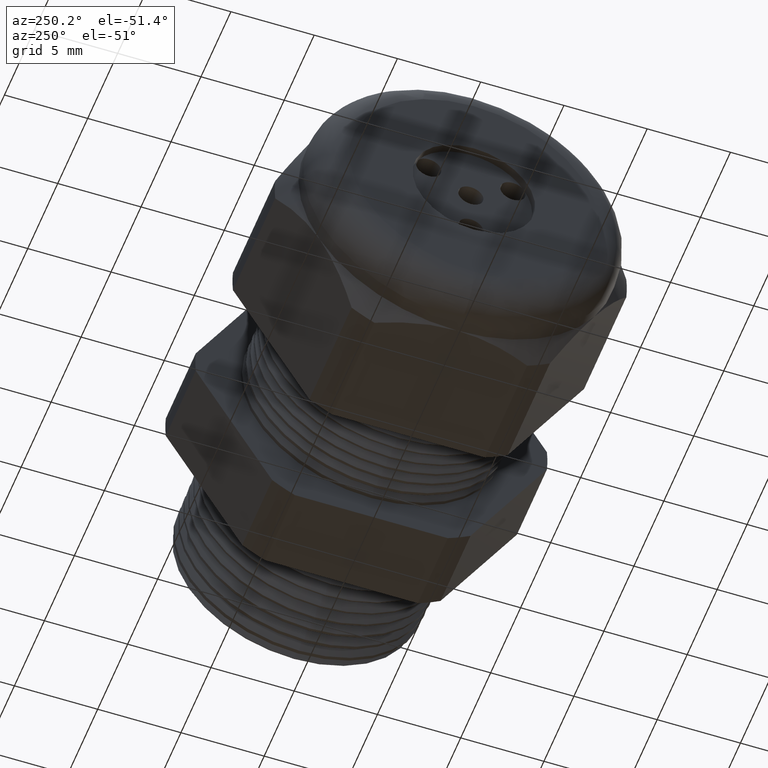
[diagram: clean part render]
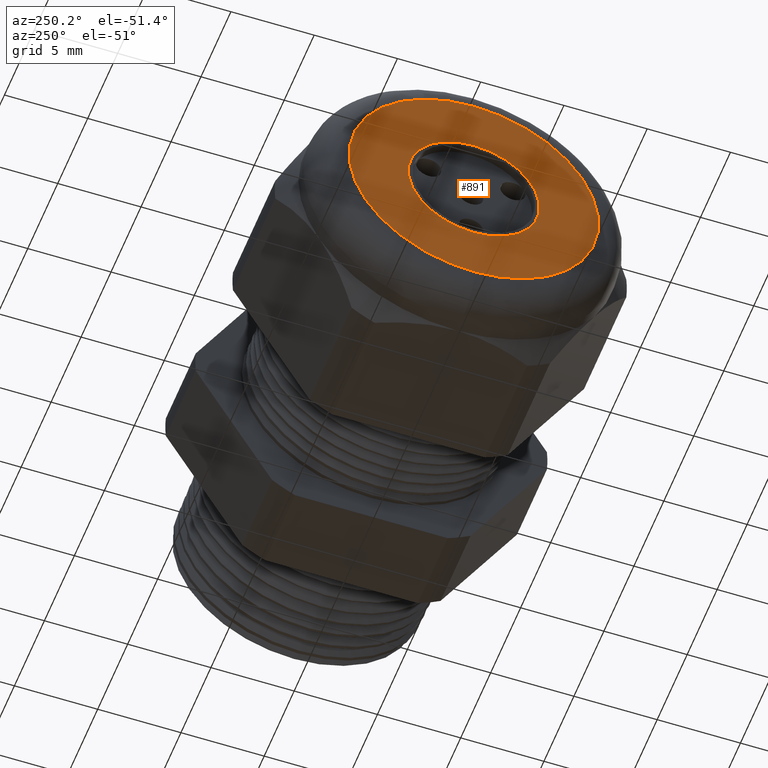
[diagram: same view with one face highlighted and labeled with its STEP entity id]
A machine part, auxiliary view. The second image highlights one B-rep face of the part: STEP entity #891.
In plain terms, the highlighted planar face has unit normal (-1, 0, 0).
Its self-contained STEP definition (entity closure, byte-faithful):
#888 = EDGE_CURVE ( 'NONE', #1496, #1495, #3223, .T. ) ;
#891 = ADVANCED_FACE ( 'NONE', ( #3218, #3217 ), #3216, .T. ) ;
#892 = EDGE_LOOP ( 'NONE', ( #893, #894 ) ) ;
#893 = ORIENTED_EDGE ( 'NONE', *, *, #1415, .T. ) ;
#894 = ORIENTED_EDGE ( 'NONE', *, *, #895, .T. ) ;
#895 = EDGE_CURVE ( 'NONE', #1413, #1416, #3211, .T. ) ;
#896 = EDGE_LOOP ( 'NONE', ( #897, #898 ) ) ;
#897 = ORIENTED_EDGE ( 'NONE', *, *, #888, .T. ) ;
#898 = ORIENTED_EDGE ( 'NONE', *, *, #1494, .T. ) ;
#1413 = VERTEX_POINT ( 'NONE', #3993 ) ;
#1415 = EDGE_CURVE ( 'NONE', #1416, #1413, #3992, .T. ) ;
#1416 = VERTEX_POINT ( 'NONE', #4049 ) ;
#1494 = EDGE_CURVE ( 'NONE', #1495, #1496, #4176, .T. ) ;
#1495 = VERTEX_POINT ( 'NONE', #4167 ) ;
#1496 = VERTEX_POINT ( 'NONE', #4166 ) ;
#3207 = DIRECTION ( 'NONE',  ( 0.0000000000000000000, 0.0000000000000000000, 1.000000000000000000 ) ) ;
#3208 = DIRECTION ( 'NONE',  ( -1.000000000000000000, 0.0000000000000000000, 0.0000000000000000000 ) ) ;
#3209 = CARTESIAN_POINT ( 'NONE',  ( -1.179999999999999900, 0.0000000000000000000, 0.0000000000000000000 ) ) ;
#3210 = AXIS2_PLACEMENT_3D ( 'NONE', #3209, #3208, #3207 ) ;
#3211 = CIRCLE ( 'NONE', #3210, 0.2950000000000001000 ) ;
#3212 = DIRECTION ( 'NONE',  ( 0.0000000000000000000, 0.0000000000000000000, 1.000000000000000000 ) ) ;
#3213 = DIRECTION ( 'NONE',  ( -1.000000000000000000, 0.0000000000000000000, 0.0000000000000000000 ) ) ;
#3214 = CARTESIAN_POINT ( 'NONE',  ( -1.179999999999999900, 0.3750000000000000600, 0.0000000000000000000 ) ) ;
#3215 = AXIS2_PLACEMENT_3D ( 'NONE', #3214, #3213, #3212 ) ;
#3216 = PLANE ( 'NONE',  #3215 ) ;
#3217 = FACE_BOUND ( 'NONE', #896, .T. ) ;
#3218 = FACE_OUTER_BOUND ( 'NONE', #892, .T. ) ;
#3219 = DIRECTION ( 'NONE',  ( 0.0000000000000000000, 0.0000000000000000000, -1.000000000000000000 ) ) ;
#3220 = DIRECTION ( 'NONE',  ( 1.000000000000000000, 0.0000000000000000000, 0.0000000000000000000 ) ) ;
#3221 = CARTESIAN_POINT ( 'NONE',  ( -1.179999999999999900, 0.0000000000000000000, 0.0000000000000000000 ) ) ;
#3222 = AXIS2_PLACEMENT_3D ( 'NONE', #3221, #3220, #3219 ) ;
#3223 = CIRCLE ( 'NONE', #3222, 0.1550000000000000000 ) ;
#3992 = CIRCLE ( 'NONE', #4053, 0.2950000000000001000 ) ;
#3993 = CARTESIAN_POINT ( 'NONE',  ( -1.179999999999999900, 4.102566777143634000E-017, -0.2950000000000001000 ) ) ;
#4049 = CARTESIAN_POINT ( 'NONE',  ( -1.179999999999999900, 0.0000000000000000000, 0.2950000000000001000 ) ) ;
#4050 = DIRECTION ( 'NONE',  ( 0.0000000000000000000, 0.0000000000000000000, 1.000000000000000000 ) ) ;
#4051 = DIRECTION ( 'NONE',  ( -1.000000000000000000, 0.0000000000000000000, 0.0000000000000000000 ) ) ;
#4052 = CARTESIAN_POINT ( 'NONE',  ( -1.179999999999999900, 0.0000000000000000000, 0.0000000000000000000 ) ) ;
#4053 = AXIS2_PLACEMENT_3D ( 'NONE', #4052, #4051, #4050 ) ;
#4166 = CARTESIAN_POINT ( 'NONE',  ( -1.179999999999999900, 0.0000000000000000000, -0.1550000000000000000 ) ) ;
#4167 = CARTESIAN_POINT ( 'NONE',  ( -1.179999999999999900, 1.898202538678397300E-017, 0.1550000000000000000 ) ) ;
#4168 = DIRECTION ( 'NONE',  ( 0.0000000000000000000, 0.0000000000000000000, -1.000000000000000000 ) ) ;
#4169 = DIRECTION ( 'NONE',  ( 1.000000000000000000, 0.0000000000000000000, 0.0000000000000000000 ) ) ;
#4170 = CARTESIAN_POINT ( 'NONE',  ( -1.179999999999999900, 0.0000000000000000000, 0.0000000000000000000 ) ) ;
#4171 = AXIS2_PLACEMENT_3D ( 'NONE', #4170, #4169, #4168 ) ;
#4176 = CIRCLE ( 'NONE', #4171, 0.1550000000000000000 ) ;